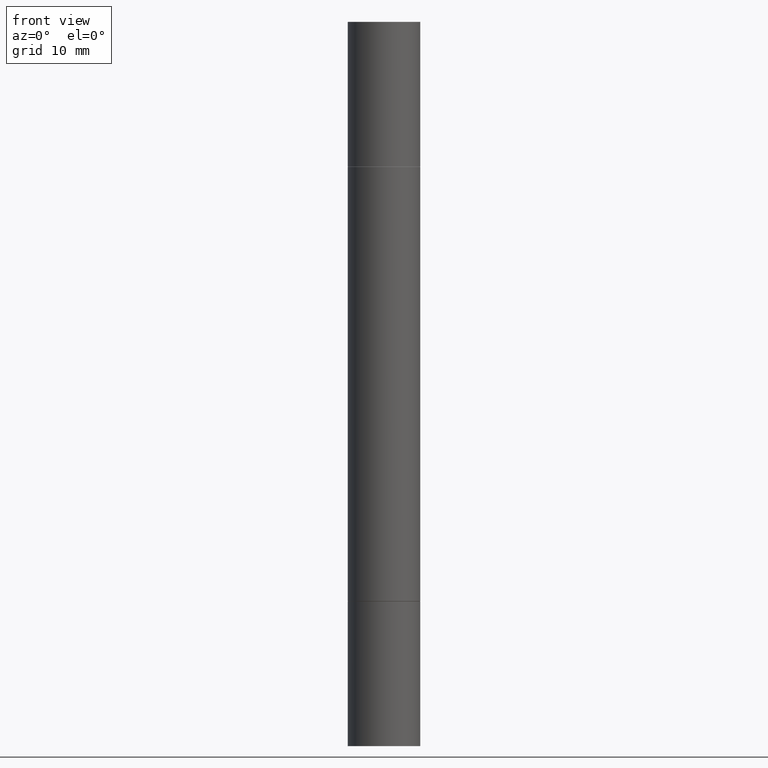
[diagram: clean part render]
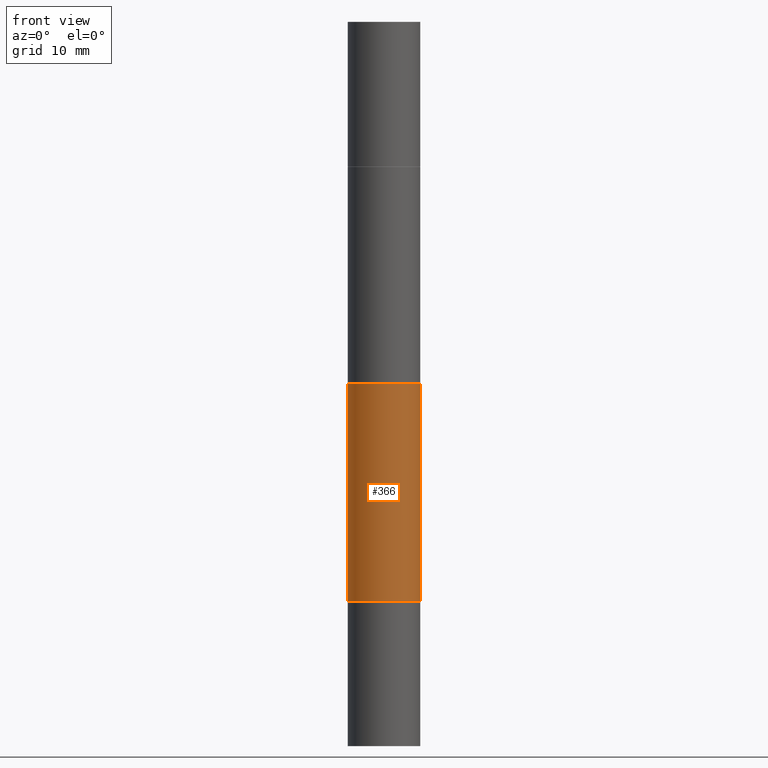
[diagram: same view with one face highlighted and labeled with its STEP entity id]
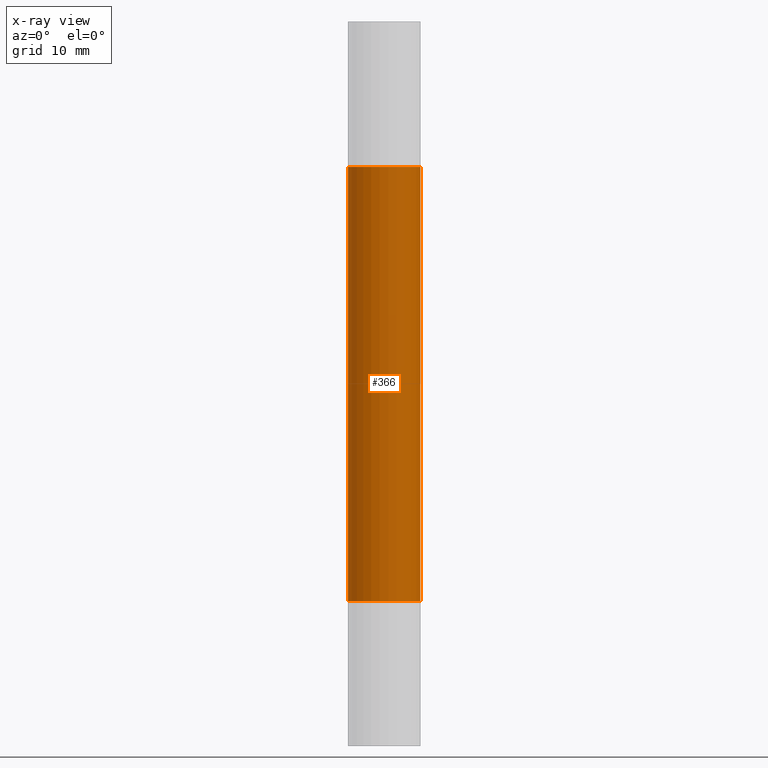
[diagram: x-ray of the same camera — body ghosted, the highlighted face saturated]
A machine part, front view. The second image highlights one B-rep face of the part: STEP entity #366.
The next image is the same camera in x-ray: the body ghosted, the highlighted face saturated — about 0% of this face is hidden behind the body in this view.
In plain terms, the highlighted cylindrical surface (edge-blend (fillet) strip) has radius 3.175 mm, axis along (-0, -0, -1).
Its self-contained STEP definition (entity closure, byte-faithful):
#24 = EDGE_CURVE ( 'NONE', #238, #463, #287, .T. ) ;
#34 = VECTOR ( 'NONE', #436, 39.37007874015748143 ) ;
#46 = AXIS2_PLACEMENT_3D ( 'NONE', #462, #83, #551 ) ;
#83 = DIRECTION ( 'NONE',  ( -2.445468806185136597E-29, -3.492890411551752677E-15, -1.000000000000000000 ) ) ;
#98 = CARTESIAN_POINT ( 'NONE',  ( 4.888492143564087591E-29, -1.748176755301667838E-15, -0.5009999999999996678 ) ) ;
#106 = DIRECTION ( 'NONE',  ( 1.000000000000000000, -6.982962677686267499E-15, 0.000000000000000000 ) ) ;
#109 = CARTESIAN_POINT ( 'NONE',  ( -0.1249999999999999861, -8.906145055802259979E-16, -0.5009999999999996678 ) ) ;
#131 = ORIENTED_EDGE ( 'NONE', *, *, #24, .F. ) ;
#141 = EDGE_CURVE ( 'NONE', #463, #227, #446, .T. ) ;
#142 = DIRECTION ( 'NONE',  ( 2.445468806185136597E-29, 3.492890411551752677E-15, 1.000000000000000000 ) ) ;
#166 = CARTESIAN_POINT ( 'NONE',  ( 0.1249999999999999861, -7.852341531058230708E-15, -1.998999999999999888 ) ) ;
#187 = EDGE_CURVE ( 'NONE', #238, #393, #328, .T. ) ;
#193 = ORIENTED_EDGE ( 'NONE', *, *, #187, .T. ) ;
#227 = VERTEX_POINT ( 'NONE', #166 ) ;
#238 = VERTEX_POINT ( 'NONE', #109 ) ;
#262 = DIRECTION ( 'NONE',  ( -2.445468806185136597E-29, 3.491481338843145583E-15, 1.000000000000000000 ) ) ;
#287 = CIRCLE ( 'NONE', #315, 0.1249999999999999861 ) ;
#315 = AXIS2_PLACEMENT_3D ( 'NONE', #98, #142, #106 ) ;
#328 = LINE ( 'NONE', #496, #34 ) ;
#331 = DIRECTION ( 'NONE',  ( -2.445468806185136877E-29, -3.492890411551753071E-15, -1.000000000000000000 ) ) ;
#353 = ORIENTED_EDGE ( 'NONE', *, *, #141, .F. ) ;
#361 = CIRCLE ( 'NONE', #467, 0.1249999999999999861 ) ;
#366 = ADVANCED_FACE ( 'NONE', ( #648 ), #403, .T. ) ;
#393 = VERTEX_POINT ( 'NONE', #398 ) ;
#398 = CARTESIAN_POINT ( 'NONE',  ( -0.1249999999999999861, -3.506789423832488265E-15, -1.998999999999999888 ) ) ;
#403 = CYLINDRICAL_SURFACE ( 'NONE', #46, 0.1249999999999998612 ) ;
#410 = VECTOR ( 'NONE', #331, 39.37007874015748143 ) ;
#423 = CARTESIAN_POINT ( 'NONE',  ( 0.1249999999999999861, -2.621047090012450585E-15, -0.5009999999999996678 ) ) ;
#436 = DIRECTION ( 'NONE',  ( -2.445468806185136877E-29, -3.492890411551753071E-15, -1.000000000000000000 ) ) ;
#440 = CARTESIAN_POINT ( 'NONE',  ( 4.888492143564087591E-29, -6.979471196347447369E-15, -1.998999999999999888 ) ) ;
#446 = LINE ( 'NONE', #642, #410 ) ;
#462 = CARTESIAN_POINT ( 'NONE',  ( 0.000000000000000000, -8.730464687993621641E-15, -2.499999999999999556 ) ) ;
#463 = VERTEX_POINT ( 'NONE', #423 ) ;
#467 = AXIS2_PLACEMENT_3D ( 'NONE', #440, #262, #483 ) ;
#483 = DIRECTION ( 'NONE',  ( 1.000000000000000000, -6.982962677686263555E-15, 0.000000000000000000 ) ) ;
#496 = CARTESIAN_POINT ( 'NONE',  ( -0.1249999999999998612, -7.872902438272180196E-15, -2.499999999999999556 ) ) ;
#551 = DIRECTION ( 'NONE',  ( 1.000000000000000000, -6.982962677686262766E-15, 0.000000000000000000 ) ) ;
#598 = ORIENTED_EDGE ( 'NONE', *, *, #664, .T. ) ;
#607 = EDGE_LOOP ( 'NONE', ( #131, #193, #598, #353 ) ) ;
#642 = CARTESIAN_POINT ( 'NONE',  ( 0.1249999999999998612, -9.603335022704403402E-15, -2.499999999999999556 ) ) ;
#648 = FACE_OUTER_BOUND ( 'NONE', #607, .T. ) ;
#664 = EDGE_CURVE ( 'NONE', #393, #227, #361, .T. ) ;